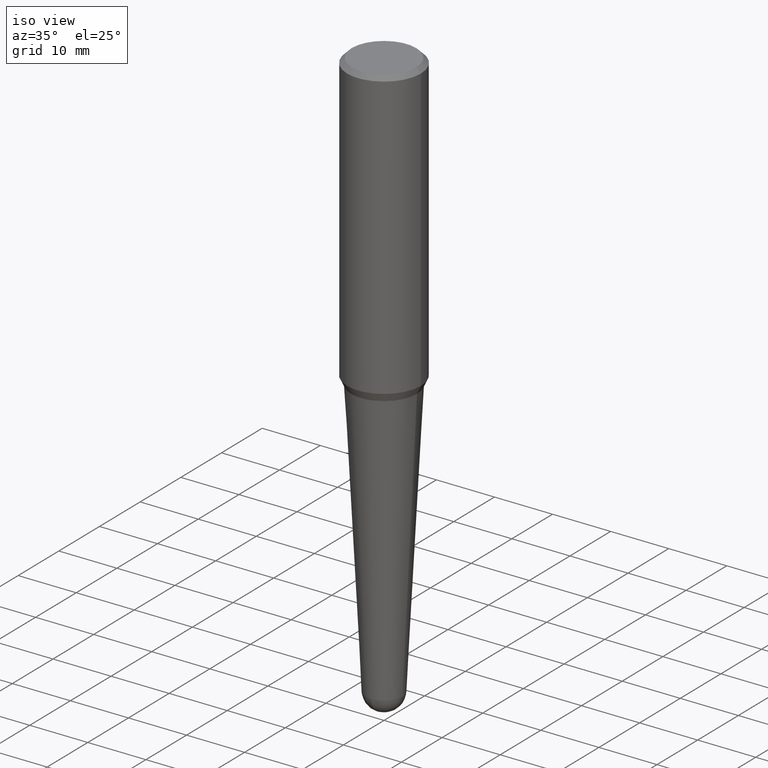
[diagram: clean part render]
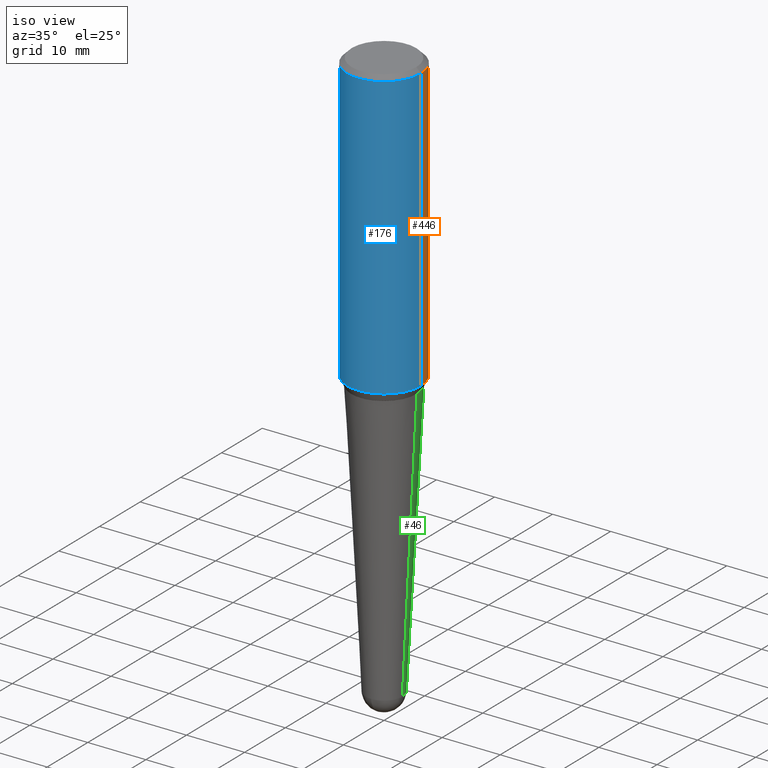
[diagram: same view with three faces highlighted in distinct colors, each labeled with its STEP entity id]
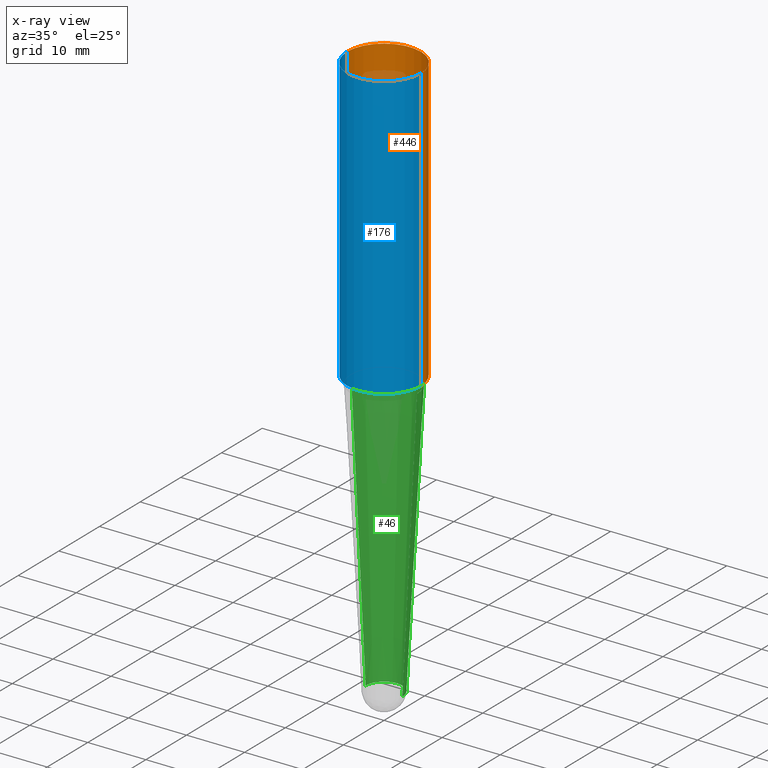
[diagram: x-ray of the same camera — body ghosted, the three highlighted faces saturated]
A machine part, iso view with three faces highlighted in distinct colors.
The next image is the same camera in x-ray (body ghosted, the three faces saturated) — at least one of them is partly hidden behind the body in this view.
Their STEP definitions:

[orange] entity #446 — the highlighted cylindrical surface (partial cylindrical patch) has radius 6.35 mm, axis along (-0, 0, 1).
#29 = CARTESIAN_POINT ( 'NONE',  ( -0.2500000000000001110, 1.776356839400253620E-15, 5.931196827434174486E-16 ) ) ;
#34 = DIRECTION ( 'NONE',  ( -2.445468806185136877E-29, 3.491481338843145188E-15, 1.000000000000000000 ) ) ;
#42 = CARTESIAN_POINT ( 'NONE',  ( 0.2500000000000001110, -1.745740669421565494E-15, 5.931196827434418047E-16 ) ) ;
#63 = CARTESIAN_POINT ( 'NONE',  ( 0.2500000000000000000, -1.854849461260415384E-15, -0.03125000000000005551 ) ) ;
#73 = VECTOR ( 'NONE', #424, 39.37007874015748143 ) ;
#76 = ORIENTED_EDGE ( 'NONE', *, *, #204, .F. ) ;
#88 = EDGE_LOOP ( 'NONE', ( #188, #222, #76, #126 ) ) ;
#105 = AXIS2_PLACEMENT_3D ( 'NONE', #107, #236, #174 ) ;
#107 = CARTESIAN_POINT ( 'NONE',  ( 7.642090019328565002E-31, -1.091087918388484967E-16, -0.03125000000000005551 ) ) ;
#123 = FACE_OUTER_BOUND ( 'NONE', #88, .T. ) ;
#126 = ORIENTED_EDGE ( 'NONE', *, *, #459, .F. ) ;
#158 = AXIS2_PLACEMENT_3D ( 'NONE', #209, #397, #313 ) ;
#166 = EDGE_CURVE ( 'NONE', #404, #219, #431, .T. ) ;
#174 = DIRECTION ( 'NONE',  ( 1.000000000000000000, -6.982962677686266711E-15, 0.000000000000000000 ) ) ;
#185 = CYLINDRICAL_SURFACE ( 'NONE', #158, 0.2500000000000001110 ) ;
#188 = ORIENTED_EDGE ( 'NONE', *, *, #166, .T. ) ;
#190 = CARTESIAN_POINT ( 'NONE',  ( 0.2500000000000002776, -8.535547974688762814E-15, -1.944678102594958879 ) ) ;
#196 = AXIS2_PLACEMENT_3D ( 'NONE', #307, #456, #378 ) ;
#204 = EDGE_CURVE ( 'NONE', #359, #258, #457, .T. ) ;
#209 = CARTESIAN_POINT ( 'NONE',  ( -1.450455682483482035E-44, 2.070866303999251778E-30, 5.931196827434296760E-16 ) ) ;
#219 = VERTEX_POINT ( 'NONE', #343 ) ;
#222 = ORIENTED_EDGE ( 'NONE', *, *, #295, .T. ) ;
#232 = CARTESIAN_POINT ( 'NONE',  ( -0.2500000000000000000, -1.673101209152769590E-15, -0.03125000000000005551 ) ) ;
#236 = DIRECTION ( 'NONE',  ( -2.445468806185136597E-29, 3.491481338843145583E-15, 1.000000000000000000 ) ) ;
#258 = VERTEX_POINT ( 'NONE', #232 ) ;
#270 = LINE ( 'NONE', #29, #410 ) ;
#295 = EDGE_CURVE ( 'NONE', #219, #258, #270, .T. ) ;
#307 = CARTESIAN_POINT ( 'NONE',  ( 4.755649637967270889E-29, -6.789807305267194559E-15, -1.944678102594958879 ) ) ;
#313 = DIRECTION ( 'NONE',  ( 1.000000000000000000, -6.982962677686267499E-15, 4.852736867747363965E-29 ) ) ;
#343 = CARTESIAN_POINT ( 'NONE',  ( -0.2500000000000002776, -5.013450465866942516E-15, -1.944678102594958879 ) ) ;
#358 = LINE ( 'NONE', #42, #73 ) ;
#359 = VERTEX_POINT ( 'NONE', #63 ) ;
#378 = DIRECTION ( 'NONE',  ( 1.000000000000000000, -6.982962677686266711E-15, 0.000000000000000000 ) ) ;
#397 = DIRECTION ( 'NONE',  ( -2.445468806185136597E-29, 3.491481338843145583E-15, 1.000000000000000000 ) ) ;
#404 = VERTEX_POINT ( 'NONE', #190 ) ;
#410 = VECTOR ( 'NONE', #34, 39.37007874015748143 ) ;
#424 = DIRECTION ( 'NONE',  ( -2.445468806185136877E-29, 3.491481338843145188E-15, 1.000000000000000000 ) ) ;
#431 = CIRCLE ( 'NONE', #196, 0.2500000000000002776 ) ;
#446 = ADVANCED_FACE ( 'NONE', ( #123 ), #185, .T. ) ;
#456 = DIRECTION ( 'NONE',  ( -2.445468806185136597E-29, 3.491481338843145583E-15, 1.000000000000000000 ) ) ;
#457 = CIRCLE ( 'NONE', #105, 0.2500000000000000000 ) ;
#459 = EDGE_CURVE ( 'NONE', #404, #359, #358, .T. ) ;

[blue] entity #176 — the highlighted cylindrical surface (partial cylindrical patch) has radius 6.35 mm, axis along (-0, 0, 1).
#29 = CARTESIAN_POINT ( 'NONE',  ( -0.2500000000000001110, 1.776356839400253620E-15, 5.931196827434174486E-16 ) ) ;
#30 = EDGE_CURVE ( 'NONE', #258, #359, #417, .T. ) ;
#34 = DIRECTION ( 'NONE',  ( -2.445468806185136877E-29, 3.491481338843145188E-15, 1.000000000000000000 ) ) ;
#42 = CARTESIAN_POINT ( 'NONE',  ( 0.2500000000000001110, -1.745740669421565494E-15, 5.931196827434418047E-16 ) ) ;
#47 = ORIENTED_EDGE ( 'NONE', *, *, #459, .T. ) ;
#52 = ORIENTED_EDGE ( 'NONE', *, *, #371, .T. ) ;
#63 = CARTESIAN_POINT ( 'NONE',  ( 0.2500000000000000000, -1.854849461260415384E-15, -0.03125000000000005551 ) ) ;
#73 = VECTOR ( 'NONE', #424, 39.37007874015748143 ) ;
#102 = DIRECTION ( 'NONE',  ( 1.000000000000000000, -6.982962677686266711E-15, 0.000000000000000000 ) ) ;
#165 = DIRECTION ( 'NONE',  ( 1.000000000000000000, -6.982962677686266711E-15, 0.000000000000000000 ) ) ;
#176 = ADVANCED_FACE ( 'NONE', ( #268 ), #298, .T. ) ;
#190 = CARTESIAN_POINT ( 'NONE',  ( 0.2500000000000002776, -8.535547974688762814E-15, -1.944678102594958879 ) ) ;
#201 = DIRECTION ( 'NONE',  ( -2.445468806185136597E-29, 3.491481338843145583E-15, 1.000000000000000000 ) ) ;
#203 = DIRECTION ( 'NONE',  ( -2.445468806185136597E-29, 3.491481338843145583E-15, 1.000000000000000000 ) ) ;
#206 = CIRCLE ( 'NONE', #271, 0.2500000000000002776 ) ;
#219 = VERTEX_POINT ( 'NONE', #343 ) ;
#232 = CARTESIAN_POINT ( 'NONE',  ( -0.2500000000000000000, -1.673101209152769590E-15, -0.03125000000000005551 ) ) ;
#234 = DIRECTION ( 'NONE',  ( 1.000000000000000000, -6.982962677686267499E-15, 4.852736867747363965E-29 ) ) ;
#243 = ORIENTED_EDGE ( 'NONE', *, *, #295, .F. ) ;
#258 = VERTEX_POINT ( 'NONE', #232 ) ;
#268 = FACE_OUTER_BOUND ( 'NONE', #423, .T. ) ;
#270 = LINE ( 'NONE', #29, #410 ) ;
#271 = AXIS2_PLACEMENT_3D ( 'NONE', #379, #201, #102 ) ;
#286 = CARTESIAN_POINT ( 'NONE',  ( 7.642090019328565002E-31, -1.091087918388484967E-16, -0.03125000000000005551 ) ) ;
#295 = EDGE_CURVE ( 'NONE', #219, #258, #270, .T. ) ;
#298 = CYLINDRICAL_SURFACE ( 'NONE', #442, 0.2500000000000001110 ) ;
#327 = ORIENTED_EDGE ( 'NONE', *, *, #30, .F. ) ;
#343 = CARTESIAN_POINT ( 'NONE',  ( -0.2500000000000002776, -5.013450465866942516E-15, -1.944678102594958879 ) ) ;
#344 = CARTESIAN_POINT ( 'NONE',  ( -1.450455682483482035E-44, 2.070866303999251778E-30, 5.931196827434296760E-16 ) ) ;
#358 = LINE ( 'NONE', #42, #73 ) ;
#359 = VERTEX_POINT ( 'NONE', #63 ) ;
#371 = EDGE_CURVE ( 'NONE', #219, #404, #206, .T. ) ;
#379 = CARTESIAN_POINT ( 'NONE',  ( 4.755649637967270889E-29, -6.789807305267194559E-15, -1.944678102594958879 ) ) ;
#390 = AXIS2_PLACEMENT_3D ( 'NONE', #286, #411, #165 ) ;
#404 = VERTEX_POINT ( 'NONE', #190 ) ;
#410 = VECTOR ( 'NONE', #34, 39.37007874015748143 ) ;
#411 = DIRECTION ( 'NONE',  ( -2.445468806185136597E-29, 3.491481338843145583E-15, 1.000000000000000000 ) ) ;
#417 = CIRCLE ( 'NONE', #390, 0.2500000000000000000 ) ;
#423 = EDGE_LOOP ( 'NONE', ( #243, #52, #47, #327 ) ) ;
#424 = DIRECTION ( 'NONE',  ( -2.445468806185136877E-29, 3.491481338843145188E-15, 1.000000000000000000 ) ) ;
#442 = AXIS2_PLACEMENT_3D ( 'NONE', #344, #203, #234 ) ;
#459 = EDGE_CURVE ( 'NONE', #404, #359, #358, .T. ) ;

[green] entity #46 — the highlighted conical surface has half-angle 3 deg.
#1 = CARTESIAN_POINT ( 'NONE',  ( 8.716740962533960207E-16, 0.1248286918443085453, -3.881541994530368633 ) ) ;
#5 = VERTEX_POINT ( 'NONE', #440 ) ;
#25 = DIRECTION ( 'NONE',  ( -2.445468806185136597E-29, 3.491481338843145583E-15, 1.000000000000000000 ) ) ;
#32 = EDGE_CURVE ( 'NONE', #5, #92, #91, .T. ) ;
#38 = CARTESIAN_POINT ( 'NONE',  ( 4.890937612370273194E-29, -6.982962677686291165E-15, -2.000000000000000000 ) ) ;
#46 = ADVANCED_FACE ( 'NONE', ( #94 ), #85, .T. ) ;
#48 = DIRECTION ( 'NONE',  ( 1.000000000000000000, -6.982962677686265133E-15, 0.000000000000000000 ) ) ;
#83 = EDGE_CURVE ( 'NONE', #251, #333, #334, .T. ) ;
#85 = CONICAL_SURFACE ( 'NONE', #454, 0.1248286918443221316, 0.05235987755982991765 ) ;
#91 = LINE ( 'NONE', #95, #380 ) ;
#92 = VERTEX_POINT ( 'NONE', #168 ) ;
#94 = FACE_OUTER_BOUND ( 'NONE', #347, .T. ) ;
#95 = CARTESIAN_POINT ( 'NONE',  ( 0.1248286918443221316, -1.442400553609208551E-14, -3.881541994530368189 ) ) ;
#103 = EDGE_CURVE ( 'NONE', #216, #251, #144, .T. ) ;
#128 = AXIS2_PLACEMENT_3D ( 'NONE', #139, #421, #346 ) ;
#139 = CARTESIAN_POINT ( 'NONE',  ( 9.492189867521652556E-29, -1.355233143983878169E-14, -3.881541994530368189 ) ) ;
#144 = CIRCLE ( 'NONE', #287, 0.1248286918443221316 ) ;
#147 = ORIENTED_EDGE ( 'NONE', *, *, #335, .T. ) ;
#168 = CARTESIAN_POINT ( 'NONE',  ( 0.2234361294054428293, -8.543208830171176949E-15, -2.000000000000000000 ) ) ;
#193 = DIRECTION ( 'NONE',  ( -2.445468806185136597E-29, 3.491481338843145583E-15, 1.000000000000000000 ) ) ;
#199 = DIRECTION ( 'NONE',  ( 1.000000000000000000, -6.982962677686269866E-15, 0.000000000000000000 ) ) ;
#214 = ORIENTED_EDGE ( 'NONE', *, *, #32, .F. ) ;
#216 = VERTEX_POINT ( 'NONE', #1 ) ;
#251 = VERTEX_POINT ( 'NONE', #455 ) ;
#254 = DIRECTION ( 'NONE',  ( 0.05233595624294386239, 3.121236355867708811E-15, 0.9986295347545738332 ) ) ;
#257 = DIRECTION ( 'NONE',  ( -0.05233595624294386239, 3.858565720288030357E-15, 0.9986295347545738332 ) ) ;
#262 = CARTESIAN_POINT ( 'NONE',  ( -0.1248286918443221316, -1.266537023779459114E-14, -3.881541994530368189 ) ) ;
#264 = CARTESIAN_POINT ( 'NONE',  ( -0.2234361294054428293, -5.395353491132379618E-15, -2.000000000000000000 ) ) ;
#287 = AXIS2_PLACEMENT_3D ( 'NONE', #374, #25, #450 ) ;
#290 = ORIENTED_EDGE ( 'NONE', *, *, #408, .F. ) ;
#294 = CARTESIAN_POINT ( 'NONE',  ( 9.492189867521652556E-29, -1.355233143983878169E-14, -3.881541994530368189 ) ) ;
#305 = VECTOR ( 'NONE', #257, 39.37007874015748854 ) ;
#310 = AXIS2_PLACEMENT_3D ( 'NONE', #38, #434, #48 ) ;
#318 = CIRCLE ( 'NONE', #310, 0.2234361294054428293 ) ;
#333 = VERTEX_POINT ( 'NONE', #264 ) ;
#334 = LINE ( 'NONE', #262, #305 ) ;
#335 = EDGE_CURVE ( 'NONE', #5, #216, #377, .T. ) ;
#346 = DIRECTION ( 'NONE',  ( 1.000000000000000000, -6.982962677686269866E-15, 0.000000000000000000 ) ) ;
#347 = EDGE_LOOP ( 'NONE', ( #394, #406, #290, #214, #147 ) ) ;
#374 = CARTESIAN_POINT ( 'NONE',  ( 9.492189867521652556E-29, -1.355233143983878169E-14, -3.881541994530368189 ) ) ;
#377 = CIRCLE ( 'NONE', #128, 0.1248286918443221316 ) ;
#380 = VECTOR ( 'NONE', #254, 39.37007874015748854 ) ;
#394 = ORIENTED_EDGE ( 'NONE', *, *, #103, .T. ) ;
#406 = ORIENTED_EDGE ( 'NONE', *, *, #83, .T. ) ;
#408 = EDGE_CURVE ( 'NONE', #92, #333, #318, .T. ) ;
#421 = DIRECTION ( 'NONE',  ( -2.445468806185136597E-29, 3.491481338843145583E-15, 1.000000000000000000 ) ) ;
#434 = DIRECTION ( 'NONE',  ( -2.445468806185136597E-29, 3.491481338843145583E-15, 1.000000000000000000 ) ) ;
#440 = CARTESIAN_POINT ( 'NONE',  ( 0.1248286918443221316, -1.148360718313163044E-14, -3.881541994530368189 ) ) ;
#450 = DIRECTION ( 'NONE',  ( 1.000000000000000000, -6.982962677686269866E-15, 0.000000000000000000 ) ) ;
#454 = AXIS2_PLACEMENT_3D ( 'NONE', #294, #193, #199 ) ;
#455 = CARTESIAN_POINT ( 'NONE',  ( -0.1248286918443221316, -9.030361864463486955E-15, -3.881541994530368189 ) ) ;